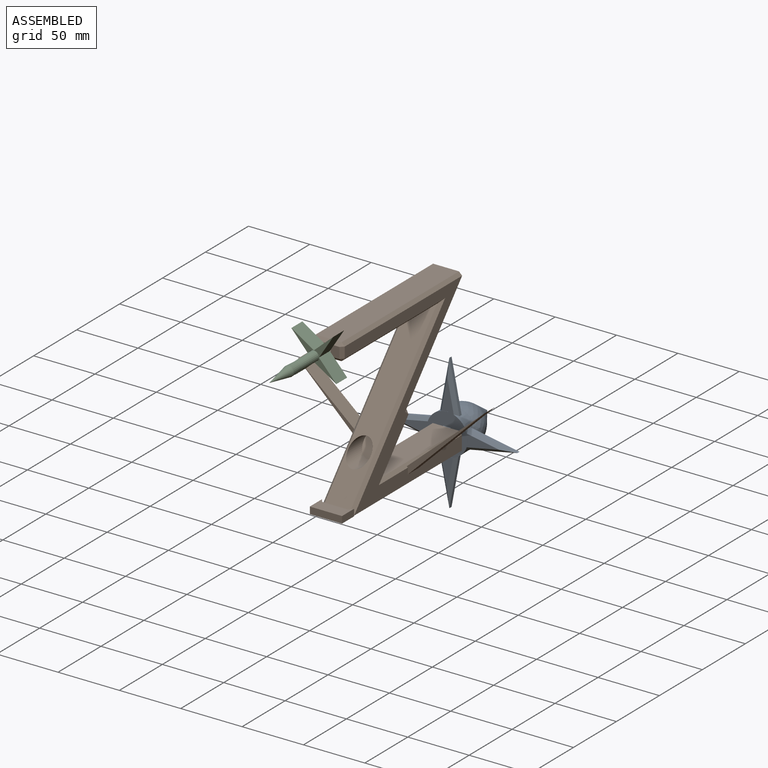
[diagram: assembled view]
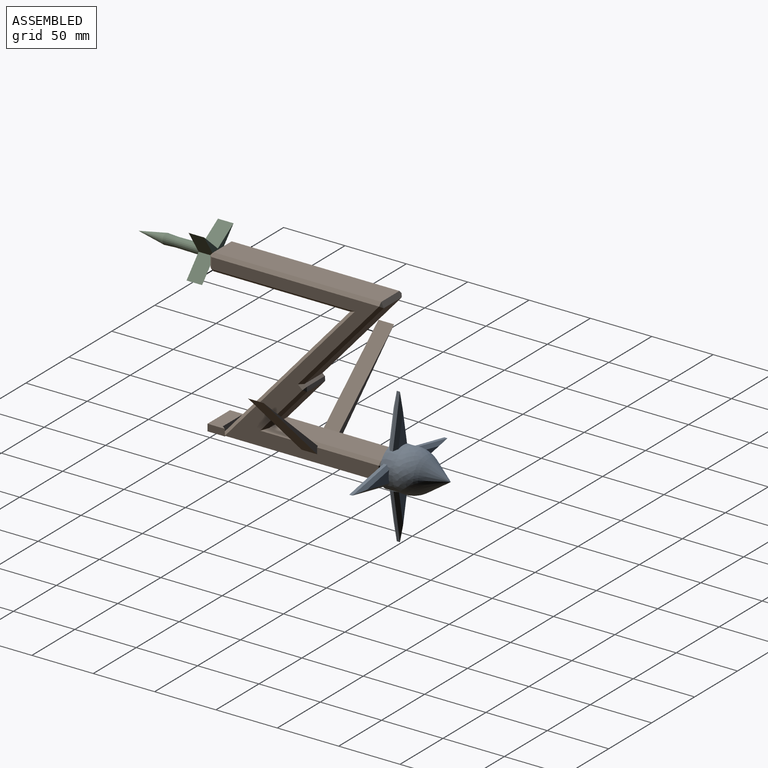
[diagram: assembled view, second angle]
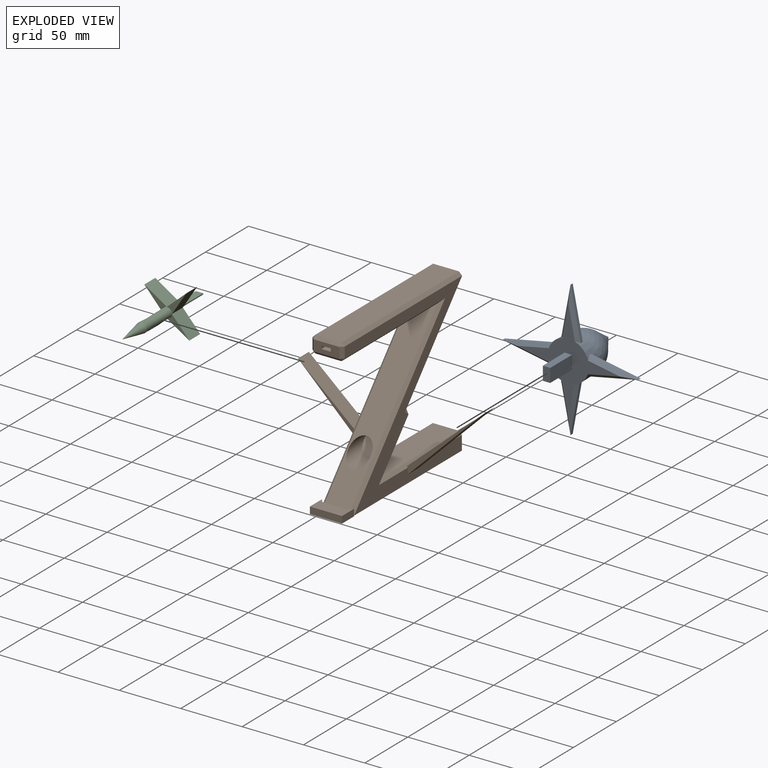
[diagram: exploded view]
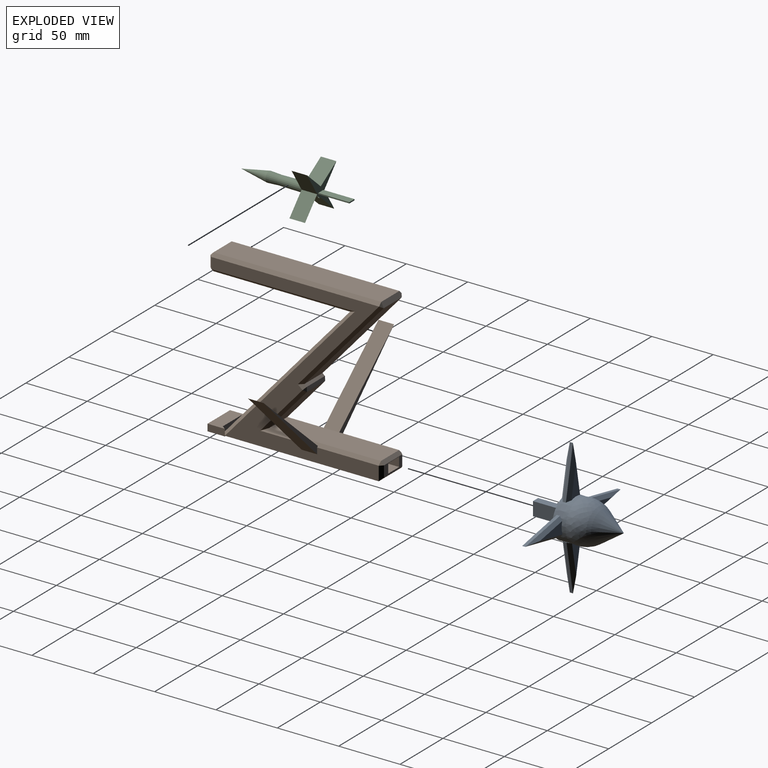
[diagram: exploded view, second angle]
ASSEMBLY  parts=3 mates=3
PART A: 41 faces, bbox 110.8x110.8x72 mm
  f0: plane 84x84mm, normal (0,0,-1), area 1314.1mm2, adj f1,f4,f11,f15,f19,f20,f21,f22
  f1: cone r=16.44mm half-angle=1.6deg, axis (0,0,-1), area 1086.9mm2, adj f0,f2,f4,f11,f15,f19,f26,f30
  f2: revolved ~33.6x33.6mm, area 1850.7mm2, adj f1,f3
  f3: cone r=0mm half-angle=34.6deg, axis (0,0,-1), area 866.4mm2, adj f2
  f4: cylinder r=16.64mm len=15.69mm, axis (0,0,-1), area 106.6mm2, adj f0,f1,f5,f6,f7,f33,f34,f35
  f5: plane 40.9x8.22mm, normal (0.2,0.98,0), area 106mm2, adj f4,f6,f34,f36
  f6: plane 40.32x7.47mm, normal (0.18,-0.98,0), area 104.2mm2, adj f4,f5,f33,f35
  f7: plane 26.18x10.05mm, normal (0,0,1), area 125.5mm2, adj f4,f35,f36
  f8: plane 26.18x10.05mm, normal (0,0,1), area 125.5mm2, adj f11,f39,f40
  f9: plane 40.32x7.47mm, normal (-0.98,-0.18,0), area 104.2mm2, adj f10,f11,f37,f39
  f10: plane 40.9x8.22mm, normal (0.98,-0.2,0), area 106mm2, adj f9,f11,f38,f40
  f11: cylinder r=16.64mm len=15.69mm, axis (0,0,-1), area 106.6mm2, adj f0,f1,f8,f9,f10,f37,f38,f39
  f12: plane 26.18x10.05mm, normal (0,0,1), area 125.5mm2, adj f15,f27,f28
  f13: plane 40.32x7.47mm, normal (-0.18,0.98,0), area 104.2mm2, adj f14,f15,f25,f27
  f14: plane 40.9x8.22mm, normal (-0.2,-0.98,0), area 106mm2, adj f13,f15,f26,f28
  f15: cylinder r=16.64mm len=15.69mm, axis (0,0,-1), area 106.6mm2, adj f0,f1,f12,f13,f14,f25,f26,f27
  f16: plane 26.18x10.05mm, normal (0,0,1), area 125.5mm2, adj f19,f31,f32
  f17: plane 40.32x7.47mm, normal (0.98,0.18,0), area 104.2mm2, adj f18,f19,f29,f31
  f18: plane 40.9x8.22mm, normal (-0.98,0.2,0), area 106mm2, adj f17,f19,f30,f32
  f19: cylinder r=16.64mm len=15.69mm, axis (0,0,-1), area 106.6mm2, adj f0,f1,f16,f17,f18,f29,f30,f31
  f20: plane 25.4x11.11mm, normal (0,-1,0), area 282.3mm2, adj f0,f21,f23,f24
  f21: plane 25.4x6.03mm, normal (-1,0,0), area 153.2mm2, adj f0,f20,f22,f24
  f22: plane 25.4x11.11mm, normal (0,1,0), area 282.3mm2, adj f0,f21,f23,f24
  f23: plane 25.4x6.03mm, normal (1,0,0), area 153.2mm2, adj f0,f20,f22,f24
  f24: plane 11.11x6.03mm, normal (0,0,-1), area 67mm2, adj f20,f21,f22,f23
  f25: plane 40.32x7.57mm, normal (-0.13,0.7,-0.71), area 120.7mm2, adj f0,f13,f15,f26
  f26: plane 40.9x8.22mm, normal (-0.14,-0.69,-0.71), area 122.6mm2, adj f0,f1,f14,f15,f25
  f27: plane 40.32x7.57mm, normal (-0.13,0.7,0.71), area 120.7mm2, adj f12,f13,f15,f28
  f28: plane 40.9x8.22mm, normal (-0.14,-0.69,0.71), area 122.7mm2, adj f12,f14,f15,f27
  f29: plane 40.32x7.57mm, normal (0.7,0.13,-0.71), area 120.7mm2, adj f0,f17,f19,f30
  f30: plane 40.9x8.22mm, normal (-0.69,0.14,-0.71), area 122.6mm2, adj f0,f1,f18,f19,f29
  f31: plane 40.32x7.57mm, normal (0.7,0.13,0.71), area 120.7mm2, adj f16,f17,f19,f32
  f32: plane 40.9x8.22mm, normal (-0.69,0.14,0.71), area 122.7mm2, adj f16,f18,f19,f31
  f33: plane 40.32x7.57mm, normal (0.13,-0.7,-0.71), area 120.7mm2, adj f0,f4,f6,f34
  f34: plane 40.9x8.22mm, normal (0.14,0.69,-0.71), area 122.6mm2, adj f0,f1,f4,f5,f33
  f35: plane 40.32x7.57mm, normal (0.13,-0.7,0.71), area 120.7mm2, adj f4,f6,f7,f36
  f36: plane 40.9x8.22mm, normal (0.14,0.69,0.71), area 122.7mm2, adj f4,f5,f7,f35
  f37: plane 40.32x7.57mm, normal (-0.7,-0.13,-0.71), area 120.7mm2, adj f0,f9,f11,f38
  f38: plane 40.9x8.22mm, normal (0.69,-0.14,-0.71), area 122.6mm2, adj f0,f1,f10,f11,f37
  f39: plane 40.32x7.57mm, normal (-0.7,-0.13,0.71), area 120.7mm2, adj f8,f9,f11,f40
  f40: plane 40.9x8.22mm, normal (0.69,-0.14,0.71), area 122.7mm2, adj f8,f10,f11,f39
PART B: 76 faces, bbox 142.1x151.8x131.8 mm
  f0: plane 136.67x128.7mm, normal (0,-1,0), area 4060.2mm2, adj f8,f29,f31,f32,f36,f41,f43,f48
  f1: plane 136.67x128.7mm, normal (0,1,0), area 4091.1mm2, adj f8,f24,f27,f28,f33,f38,f40,f45
  f2: plane 21.13x8.9mm, normal (1,0,0), area 168.7mm2, adj f19,f20,f21,f22,f57,f58,f62,f63
  f3: plane 21.13x8.9mm, normal (-1,0,0), area 91.3mm2, adj f14,f15,f16,f17,f33,f34,f36,f37
  f4: plane 72.99x64.55mm, normal (-0.75,0,-0.66), area 2059mm2, adj f12,f47,f50,f51
  f5: plane 136.67x21.13mm, normal (0,0,1), area 2887.9mm2, adj f51,f52,f56,f57
  f6: plane 111.28x21.13mm, normal (0,0,-1), area 2351.5mm2, adj f7,f59,f63,f65
  f7: plane 117.26x103.7mm, normal (0.75,0,0.66), area 2949.7mm2, adj f6,f10,f55,f66,f73
  f8: plane 125.42x26.21mm, normal (0,0,-1), area 3287.2mm2, adj f0,f1,f34,f68
  f9: plane 91x21.13mm, normal (0,0,1), area 1922.9mm2, adj f11,f37,f38,f41
  f10: cylinder r=9.24mm len=35.12mm, axis (-1,0,0), area 1083.6mm2, adj f7,f13
  f11: plane 34.78x30.76mm, normal (-0.75,0,-0.66), area 981.1mm2, adj f9,f40,f43,f44
  f12: plane 21.13x1.9mm, normal (-0.66,0,0.75), area 53.7mm2, adj f4,f44,f45,f48
  f13: plane 18.48x18.48mm, normal (0.75,0,0.66), area 358.2mm2, adj f10
  f14: plane 25.4x12.7mm, normal (0,0,-1), area 322.6mm2, adj f3,f15,f17,f18
  f15: plane 25.4x7.62mm, normal (0,-1,0), area 193.5mm2, adj f3,f14,f16,f18
  f16: plane 25.4x12.7mm, normal (0,0,1), area 322.6mm2, adj f3,f15,f17,f18
  f17: plane 25.4x7.62mm, normal (0,1,0), area 193.5mm2, adj f3,f14,f16,f18
  f18: plane 12.7x7.62mm, normal (-1,0,0), area 96.8mm2, adj f14,f15,f16,f17
  f19: plane 23.81x7.62mm, normal (0,0,-1), area 181.5mm2, adj f2,f20,f22,f23
  f20: plane 23.81x2.54mm, normal (0,1,0), area 60.5mm2, adj f2,f19,f21,f23
  f21: plane 23.81x7.62mm, normal (0,0,1), area 181.5mm2, adj f2,f20,f22,f23
  f22: plane 23.81x2.54mm, normal (0,-1,0), area 60.5mm2, adj f2,f19,f21,f23
  f23: plane 7.62x2.54mm, normal (1,0,0), area 19.4mm2, adj f19,f20,f21,f22
  f24: plane 12.7x2.6mm, normal (0,-1,0), area 33mm2, adj f1,f25,f27,f28
  f25: plane 62.26x61.51mm, normal (0,0.7,-0.71), area 1111.4mm2, adj f24,f26,f27,f28
  f26: plane 63.11x55.69mm, normal (0,-0.66,0.75), area 1068.9mm2, adj f25,f27,f28,f38
  f27: plane 63.11x61.51mm, normal (-1,0,0), area 205.3mm2, adj f1,f24,f25,f26,f38
  f28: plane 63.11x61.51mm, normal (1,0,0), area 205.3mm2, adj f1,f24,f25,f26,f38
  f29: plane 63.36x61.34mm, normal (0,-0.7,-0.72), area 1120mm2, adj f0,f30,f31,f32
  f30: plane 64.23x55.66mm, normal (0,0.65,0.76), area 1079.4mm2, adj f29,f31,f32,f41
  f31: plane 64.23x61.34mm, normal (-1,0,0), area 204.5mm2, adj f0,f29,f30,f41
  f32: plane 64.23x61.34mm, normal (1,0,0), area 204.5mm2, adj f0,f29,f30,f41
  f33: plane 11.44x2.54mm, normal (-0.71,0.71,0), area 36.5mm2, adj f1,f3,f34,f35
  f34: plane 26.21x2.54mm, normal (-0.71,0,-0.71), area 85mm2, adj f3,f8,f33,f36
  f35: plane 2.54x2.54mm, normal (-0.58,0.58,0.58), area 5.6mm2, adj f33,f37,f38
  f36: plane 11.44x2.54mm, normal (-0.71,-0.71,0), area 36.5mm2, adj f0,f3,f34,f39
  f37: plane 21.13x2.54mm, normal (-0.71,0,0.71), area 75.9mm2, adj f3,f9,f35,f39
  f38: plane 96.64x2.54mm, normal (0,0.71,0.71), area 321.8mm2, adj f1,f9,f26,f27,f28,f35,f40
  f39: plane 2.54x2.54mm, normal (-0.58,-0.58,0.58), area 5.6mm2, adj f36,f37,f41
  f40: plane 39x36.4mm, normal (-0.53,0.71,-0.47), area 176.9mm2, adj f1,f11,f38,f42
  f41: plane 96.64x2.54mm, normal (0,-0.71,0.71), area 321.4mm2, adj f0,f9,f30,f31,f32,f39,f43
  f42: plane 3.59x2.54mm, normal (-0.81,0.58,0.05), area 5.6mm2, adj f40,f44,f45
  f43: plane 39x36.4mm, normal (-0.53,-0.71,-0.47), area 176.9mm2, adj f0,f11,f41,f46
  f44: plane 21.13x3.59mm, normal (-1,0,0.06), area 75.9mm2, adj f11,f12,f42,f46
  f45: plane 5.49x3.59mm, normal (-0.47,0.71,0.53), area 13.7mm2, adj f1,f12,f42,f47
  f46: plane 3.59x2.54mm, normal (-0.81,-0.58,0.05), area 5.6mm2, adj f43,f44,f48
  f47: plane 74.9x68.14mm, normal (-0.53,0.71,-0.47), area 354.6mm2, adj f1,f4,f45,f49
  f48: plane 5.49x3.59mm, normal (-0.47,-0.71,0.53), area 13.7mm2, adj f0,f12,f46,f50
  f49: plane 4.22x2.54mm, normal (-0.84,0.38,0.38), area 6.4mm2, adj f47,f51,f52
  f50: plane 74.9x68.14mm, normal (-0.53,-0.71,-0.47), area 354.6mm2, adj f0,f4,f48,f53
  f51: plane 21.13x4.22mm, normal (-0.91,0,0.41), area 97.9mm2, adj f4,f5,f49,f53
  f52: plane 136.67x2.54mm, normal (0,0.71,0.71), area 490.9mm2, adj f1,f5,f49,f54
  f53: plane 4.22x2.54mm, normal (-0.84,-0.38,0.38), area 6.4mm2, adj f50,f51,f56
  f54: plane 2.54x2.54mm, normal (0.58,0.58,0.58), area 5.6mm2, adj f52,f57,f58
  f55: plane 119.8x109.34mm, normal (0.53,0.71,0.47), area 568.4mm2, adj f1,f7,f59,f72
  f56: plane 136.67x2.54mm, normal (0,-0.71,0.71), area 490.9mm2, adj f0,f5,f53,f60
  f57: plane 21.13x2.54mm, normal (0.71,0,0.71), area 75.9mm2, adj f2,f5,f54,f60
  f58: plane 8.9x2.54mm, normal (0.71,0.71,0), area 32mm2, adj f1,f2,f54,f61
  f59: plane 116.92x2.54mm, normal (0,0.71,-0.71), area 409.9mm2, adj f1,f6,f55,f61
  f60: plane 2.54x2.54mm, normal (0.58,-0.58,0.58), area 5.6mm2, adj f56,f57,f62
  f61: plane 2.54x2.54mm, normal (0.58,0.58,-0.58), area 5.6mm2, adj f58,f59,f63
  f62: plane 8.9x2.54mm, normal (0.71,-0.71,0), area 32mm2, adj f0,f2,f60,f64
  f63: plane 21.13x2.54mm, normal (0.71,0,-0.71), area 75.9mm2, adj f2,f6,f61,f64
  f64: plane 2.54x2.54mm, normal (0.58,-0.58,-0.58), area 5.6mm2, adj f62,f63,f65
  f65: plane 116.92x2.54mm, normal (0,-0.71,-0.71), area 409.9mm2, adj f0,f6,f64,f66
  f66: plane 119.8x109.34mm, normal (0.53,-0.71,0.47), area 568.4mm2, adj f0,f7,f65,f74
  f67: plane 14.13x5.59mm, normal (0,-1,0), area 78.9mm2, adj f68,f70,f71,f74,f75
  f68: plane 26.21x0.51mm, normal (-1,0,0), area 13.3mm2, adj f8,f67,f69,f71
  f69: plane 14.13x5.59mm, normal (0,1,0), area 78.9mm2, adj f68,f70,f71,f72,f75
  f70: plane 26.21x5.59mm, normal (1,0,0), area 146.5mm2, adj f67,f69,f71,f75
  f71: plane 26.21x14.13mm, normal (0,0,-1), area 370.3mm2, adj f67,f68,f69,f70
  f72: plane 5.08x3.39mm, normal (-0.6,-0.8,0), area 21.5mm2, adj f55,f69,f73,f75
  f73: plane 21.13x5.08mm, normal (-1,0,0), area 107.3mm2, adj f7,f72,f74,f75
  f74: plane 5.08x3.39mm, normal (-0.6,0.8,0), area 21.5mm2, adj f66,f67,f73,f75
  f75: plane 26.21x14.13mm, normal (0,0,1), area 290.1mm2, adj f67,f69,f70,f72,f73,f74
PART C: 25 faces, bbox 36.6x90.2x36.6 mm
  f0: plane 36.6x36.6mm, normal (0,-1,0), area 278.4mm2, adj f1,f4,f5,f6,f7,f10,f11,f13
  f1: cone r=4.17mm half-angle=0.9deg, axis (0,-1,0), area 813.8mm2, adj f0,f3,f9,f13,f14,f15,f17,f18
  f2: cone r=4.17mm half-angle=10.5deg, axis (0,-1,0), area 301.2mm2, adj f3
  f3: cone r=3.68mm half-angle=3.1deg, axis (0,1,0), area 226.5mm2, adj f1,f2
  f4: plane 25.4x6.03mm, normal (0,0,1), area 153.2mm2, adj f0,f5,f7,f8
  f5: plane 25.4x0.95mm, normal (-1,0,0), area 24.2mm2, adj f0,f4,f6,f8
  f6: plane 25.4x6.03mm, normal (0,0,-1), area 153.2mm2, adj f0,f5,f7,f8
  f7: plane 25.4x0.95mm, normal (1,0,0), area 24.2mm2, adj f0,f4,f6,f8
  f8: plane 6.03x0.95mm, normal (0,-1,0), area 5.7mm2, adj f4,f5,f6,f7
  f9: cylinder r=4.17mm len=12.7mm, axis (0,-1,0), area 83.2mm2, adj f1,f10,f11,f12
  f10: plane 15.79x14.13mm, normal (0.75,0,-0.67), area 269.1mm2, adj f0,f9,f11,f12
  f11: plane 18.3x12.7mm, normal (-0.54,0,0.84), area 275.3mm2, adj f0,f9,f10,f12
  f12: plane 18.3x15.79mm, normal (0,1,0), area 57.4mm2, adj f9,f10,f11
  f13: plane 15.79x14.13mm, normal (-0.67,0,-0.75), area 269.1mm2, adj f0,f1,f14,f15,f16
  f14: plane 18.3x12.7mm, normal (0.84,0,0.54), area 275.3mm2, adj f0,f1,f13,f15,f16
  f15: cylinder r=4.17mm len=12.69mm, axis (0,-1,0), area 83.1mm2, adj f1,f13,f14,f16
  f16: plane 18.3x15.79mm, normal (0,1,0), area 57.4mm2, adj f13,f14,f15
  f17: plane 15.79x14.13mm, normal (0.67,0,0.75), area 269.1mm2, adj f0,f1,f18,f19,f20
  f18: plane 18.27x12.7mm, normal (-0.84,0,-0.54), area 275mm2, adj f0,f1,f17,f19,f20
  f19: cylinder r=4.17mm len=12.69mm, axis (0,-1,0), area 82.6mm2, adj f1,f17,f18,f20
  f20: plane 18.27x15.79mm, normal (0,1,0), area 57.3mm2, adj f17,f18,f19
  f21: plane 15.77x14.13mm, normal (-0.74,0,0.67), area 268.9mm2, adj f0,f1,f22,f23,f24
  f22: plane 18.3x12.7mm, normal (0.54,0,-0.84), area 275.3mm2, adj f0,f1,f21,f23,f24
  f23: cylinder r=4.17mm len=12.7mm, axis (0,-1,0), area 82.7mm2, adj f1,f21,f22,f24
  f24: plane 18.3x15.77mm, normal (0,1,0), area 57.3mm2, adj f21,f22,f23
PLACE A rot(axis=(-0.58,0.58,0.58),120deg) t=(121.96,150.17,-138.35)mm
PLACE B rot(axis=(0,0,-1),90deg) t=(121.96,84.73,-77.72)mm
PLACE C rot(axis=(-1,0,0),180deg) t=(122.34,7.12,-21.11)mm
MATE planar A.f1 <-> B.f18  axis (0,-1,0) through (121.96,124.77,-138.35)mm
MATE fastened B.f23 <-> C.f1  axis (0,-1,0) through (122.34,32.52,-21.11)mm
MATE fastened B.f18 <-> A.f1  axis (0,1,0) through (121.96,124.77,-138.35)mm
